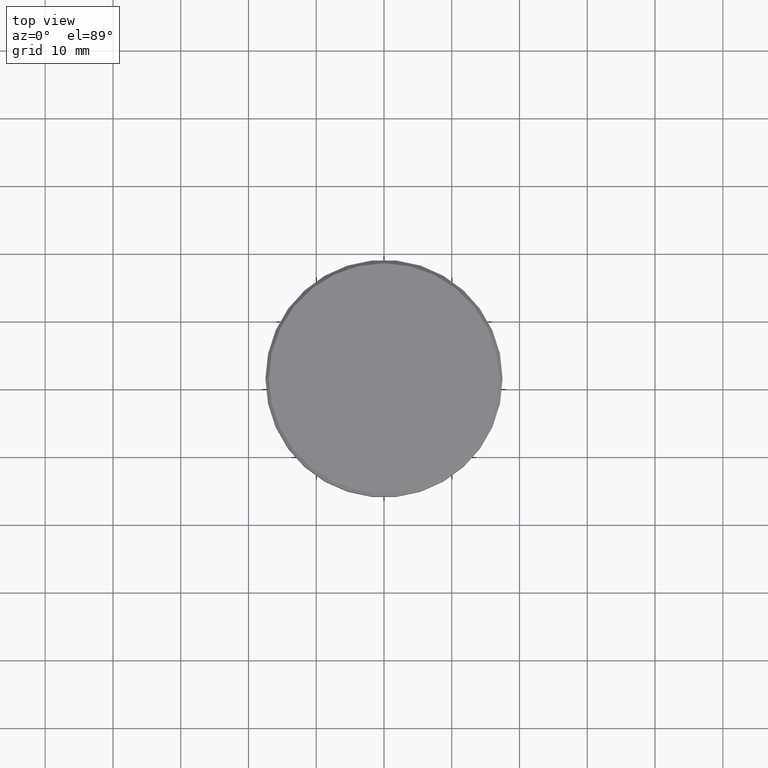
[diagram: clean part render]
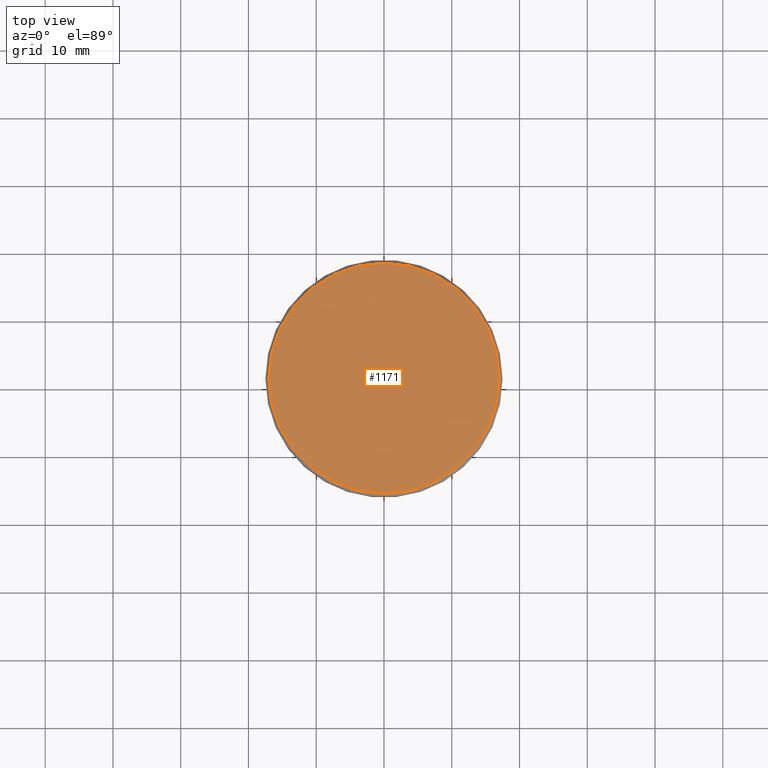
[diagram: same view with one face highlighted and labeled with its STEP entity id]
A machine part, top view. The second image highlights one B-rep face of the part: STEP entity #1171.
In plain terms, the highlighted planar face has unit normal (0, -0, 1).
Its self-contained STEP definition (entity closure, byte-faithful):
#21 = CARTESIAN_POINT ( 'NONE',  ( 17.00000000000000000, 2.112515728529184067E-15, 0.000000000000000000 ) ) ;
#79 = DIRECTION ( 'NONE',  ( -0.000000000000000000, -0.000000000000000000, 1.000000000000000000 ) ) ;
#103 = DIRECTION ( 'NONE',  ( 1.000000000000000000, 0.000000000000000000, 0.000000000000000000 ) ) ;
#109 = CARTESIAN_POINT ( 'NONE',  ( 0.000000000000000000, 0.000000000000000000, 0.000000000000000000 ) ) ;
#222 = AXIS2_PLACEMENT_3D ( 'NONE', #893, #79, #1005 ) ;
#226 = AXIS2_PLACEMENT_3D ( 'NONE', #729, #1092, #103 ) ;
#333 = EDGE_CURVE ( 'NONE', #606, #558, #733, .T. ) ;
#376 = FACE_OUTER_BOUND ( 'NONE', #840, .T. ) ;
#455 = PLANE ( 'NONE',  #226 ) ;
#558 = VERTEX_POINT ( 'NONE', #21 ) ;
#606 = VERTEX_POINT ( 'NONE', #979 ) ;
#660 = ORIENTED_EDGE ( 'NONE', *, *, #333, .T. ) ;
#693 = AXIS2_PLACEMENT_3D ( 'NONE', #109, #714, #902 ) ;
#714 = DIRECTION ( 'NONE',  ( -0.000000000000000000, -0.000000000000000000, 1.000000000000000000 ) ) ;
#729 = CARTESIAN_POINT ( 'NONE',  ( 0.000000000000000000, 0.000000000000000000, 0.000000000000000000 ) ) ;
#733 = CIRCLE ( 'NONE', #222, 17.00000000000000000 ) ;
#768 = CIRCLE ( 'NONE', #693, 17.00000000000000000 ) ;
#770 = ORIENTED_EDGE ( 'NONE', *, *, #878, .T. ) ;
#840 = EDGE_LOOP ( 'NONE', ( #660, #770 ) ) ;
#878 = EDGE_CURVE ( 'NONE', #558, #606, #768, .T. ) ;
#893 = CARTESIAN_POINT ( 'NONE',  ( 0.000000000000000000, 0.000000000000000000, 0.000000000000000000 ) ) ;
#902 = DIRECTION ( 'NONE',  ( 1.000000000000000000, 0.000000000000000000, 0.000000000000000000 ) ) ;
#979 = CARTESIAN_POINT ( 'NONE',  ( -17.00000000000000000, 0.000000000000000000, 0.000000000000000000 ) ) ;
#1005 = DIRECTION ( 'NONE',  ( 1.000000000000000000, 0.000000000000000000, 0.000000000000000000 ) ) ;
#1092 = DIRECTION ( 'NONE',  ( 0.000000000000000000, -0.000000000000000000, 1.000000000000000000 ) ) ;
#1171 = ADVANCED_FACE ( 'NONE', ( #376 ), #455, .T. ) ;